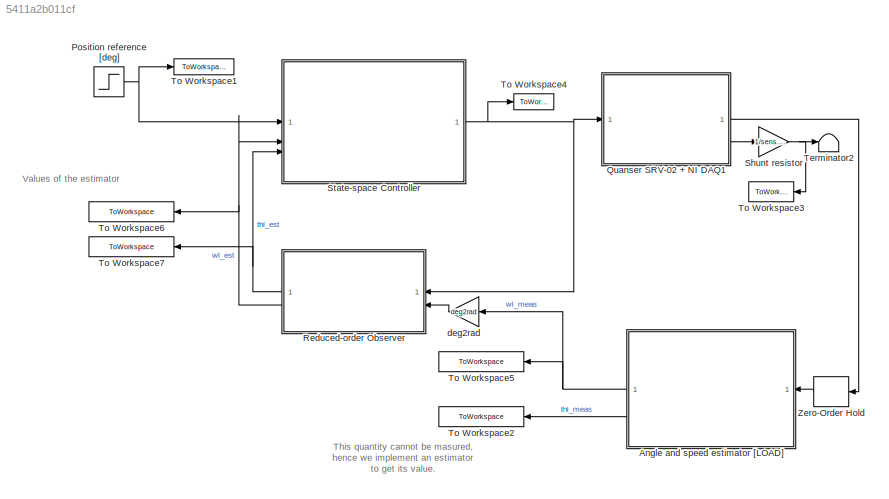
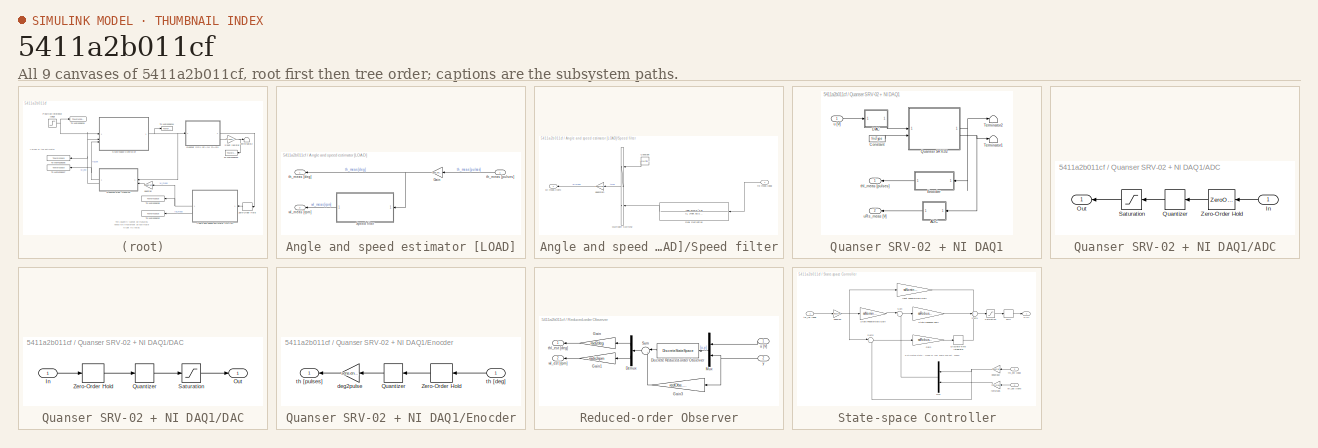
[diagram: thumbnail index - all 9 canvases of the model, root first then tree order]
MODEL slx_5411a2b011cf
KIND model
CONFIG AbsTol = auto
CONFIG EnableMultiTasking = off
CONFIG FixedStep = auto
CONFIG MaxStep = auto
CONFIG MinStep = auto
CONFIG RelTol = 1e-3
CONFIG SampleTimeConstraint = Unconstrained
CONFIG SolverName = VariableStepAuto
CONFIG StartTime = 0.0
CONFIG StopTime = 10.0
BLOCK [SubSystem] Angle and speed estimator [LOAD]
  NameLocation = top
BLOCK [Gain] Angle and speed estimator [LOAD]/Gain
  Gain = sens.enc.pulse2deg
  NameLocation = top
BLOCK [SubSystem] Angle and speed estimator [LOAD]/Speed filter
  NameLocation = top
BLOCK [Constant] Angle and speed estimator [LOAD]/Speed filter/Constant
  NameLocation = top
  Value = simul.filtselect
BLOCK [MultiPortSwitch] Angle and speed estimator [LOAD]/Speed filter/Multiport Switch2
  InputSameDT = off
  Inputs = 2
  NameLocation = top
  SaturateOnIntegerOverflow = off
BLOCK [TransferFcn] Angle and speed estimator [LOAD]/Speed filter/Real Derivative
  Denominator = [1, 2*der.dSS*der.wcSS, der.wcSS^2]
  NameLocation = top
  Numerator = [der.wcSS^2 0]
BLOCK [Gain] Angle and speed estimator [LOAD]/Speed filter/degs2rpm
  Gain = degs2rpm
BLOCK [Inport] Angle and speed estimator [LOAD]/Speed filter/thl-meas [deg]
BLOCK [Outport] Angle and speed estimator [LOAD]/Speed filter/wl-meas [rpm]
BLOCK [Outport] Angle and speed estimator [LOAD]/th_meas [deg]
BLOCK [Inport] Angle and speed estimator [LOAD]/th_meas [pulses]
  NameLocation = top
BLOCK [Outport] Angle and speed estimator [LOAD]/wl_meas [rpm]
  Port = 2
BLOCK [Step] Position reference [deg]
  After = simul.stepdeg
BLOCK [SubSystem] Quanser SRV-02 + NI DAQ1
BLOCK [SubSystem] Quanser SRV-02 + NI DAQ1/ADC
BLOCK [Inport] Quanser SRV-02 + NI DAQ1/ADC/In
BLOCK [Outport] Quanser SRV-02 + NI DAQ1/ADC/Out
BLOCK [Quantizer] Quanser SRV-02 + NI DAQ1/ADC/Quantizer
  QuantizationInterval = daq.adc.q
BLOCK [Saturate] Quanser SRV-02 + NI DAQ1/ADC/Saturation
  LowerLimit = -daq.adc.fs
  UpperLimit = daq.adc.fs
BLOCK [ZeroOrderHold] Quanser SRV-02 + NI DAQ1/ADC/Zero-Order Hold
  SampleTime = Ts
BLOCK [Constant] Quanser SRV-02 + NI DAQ1/Constant
  Value = fricType
BLOCK [SubSystem] Quanser SRV-02 + NI DAQ1/DAC
BLOCK [Inport] Quanser SRV-02 + NI DAQ1/DAC/In
BLOCK [Outport] Quanser SRV-02 + NI DAQ1/DAC/Out
BLOCK [Quantizer] Quanser SRV-02 + NI DAQ1/DAC/Quantizer
  QuantizationInterval = daq.dac.q
BLOCK [Saturate] Quanser SRV-02 + NI DAQ1/DAC/Saturation
  LowerLimit = -daq.dac.fs
  UpperLimit = daq.dac.fs
BLOCK [ZeroOrderHold] Quanser SRV-02 + NI DAQ1/DAC/Zero-Order Hold
  SampleTime = Ts
BLOCK [SubSystem] Quanser SRV-02 + NI DAQ1/Enocder
BLOCK [Quantizer] Quanser SRV-02 + NI DAQ1/Enocder/Quantizer
  QuantizationInterval = sens.enc.pulse2deg
BLOCK [ZeroOrderHold] Quanser SRV-02 + NI DAQ1/Enocder/Zero-Order Hold
  SampleTime = Ts
BLOCK [Gain] Quanser SRV-02 + NI DAQ1/Enocder/deg2pulse
  Gain = sens.enc.deg2pulse
BLOCK [Inport] Quanser SRV-02 + NI DAQ1/Enocder/th [deg]
BLOCK [Outport] Quanser SRV-02 + NI DAQ1/Enocder/th [pulses]
BLOCK [ModelReference] Quanser SRV-02 + NI DAQ1/Quanser SRV-02
  CopyOfModelProtected = on
  ModelNameDialog = SRV02IL_win64.slxp
  ModelReferenceVersion = 1.44
BLOCK [Terminator] Quanser SRV-02 + NI DAQ1/Terminator1
BLOCK [Terminator] Quanser SRV-02 + NI DAQ1/Terminator2
BLOCK [Outport] Quanser SRV-02 + NI DAQ1/thl_meas [pulses]
BLOCK [Inport] Quanser SRV-02 + NI DAQ1/u [V]
BLOCK [Outport] Quanser SRV-02 + NI DAQ1/uRs_meas [V]
  Port = 2
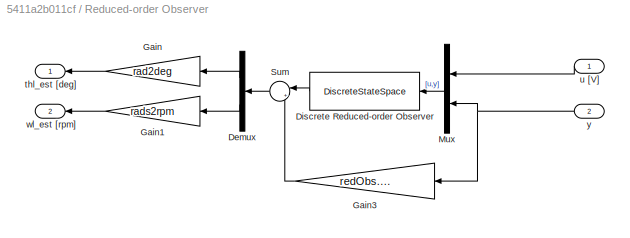
BLOCK [SubSystem] Reduced-order Observer
  NameLocation = top
BLOCK [Demux] Reduced-order Observer/Demux
  NameLocation = top
  Outputs = 2
BLOCK [DiscreteStateSpace] Reduced-order Observer/Discrete Reduced-order Observer
  A = redObs.Ph0
  B = redObs.Gamma0
  C = redObs.H0
  D = zeros(2)
  SampleTime = T(simul.Ts_selector)
BLOCK [Gain] Reduced-order Observer/Gain
  Gain = rad2deg
BLOCK [Gain] Reduced-order Observer/Gain1
  Gain = rads2rpm
BLOCK [Gain] Reduced-order Observer/Gain3
  Gain = redObs.J0(:,2)
  NameLocation = top
BLOCK [Mux] Reduced-order Observer/Mux
  DisplayOption = bar
  Inputs = 2
  NameLocation = top
BLOCK [Sum] Reduced-order Observer/Sum
  Inputs = |++
  NameLocation = top
BLOCK [Outport] Reduced-order Observer/thl_est [deg]
BLOCK [Inport] Reduced-order Observer/u [V]
BLOCK [Outport] Reduced-order Observer/wl_est [rpm]
  Port = 2
BLOCK [Inport] Reduced-order Observer/y
  Port = 2
BLOCK [Gain] Shunt resistor
  Gain = 1/sens.curr.Rs
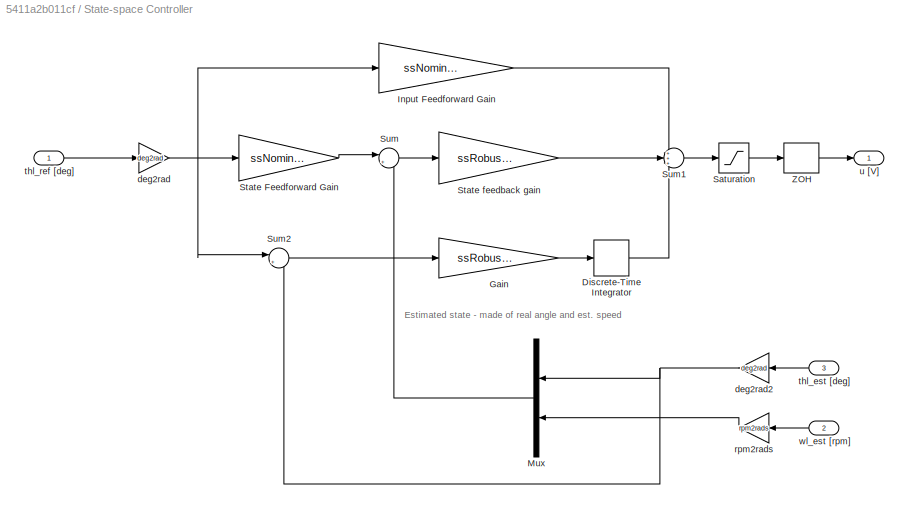
BLOCK [SubSystem] State-space Controller
BLOCK [DiscreteIntegrator] State-space Controller/Discrete-Time Integrator
  ICPrevOutput = DiscIntNeverNeededParam
  ICPrevScaledInput = DiscIntNeverNeededParam
  InitialConditionSetting = Auto
  IntegratorMethod = Integration: Backward Euler
  SampleTime = T(simul.Ts_selector)
BLOCK [Gain] State-space Controller/Gain
  Gain = ssRobust.Ki3
BLOCK [Gain] State-space Controller/Input Feedforward Gain
  Gain = ssNominal.Nu
BLOCK [Mux] State-space Controller/Mux
  DisplayOption = bar
  Inputs = 2
  NameLocation = top
BLOCK [Saturate] State-space Controller/Saturation
  LowerLimit = -10
  UpperLimit = 10
BLOCK [Gain] State-space Controller/State Feedforward Gain
  Gain = ssNominal.Nx
BLOCK [Gain] State-space Controller/State feedback gain
  Gain = ssRobust.K3
  Multiplication = Matrix(K*u)
BLOCK [Sum] State-space Controller/Sum
  Inputs = |+-
BLOCK [Sum] State-space Controller/Sum1
  Inputs = +++
BLOCK [Sum] State-space Controller/Sum2
  Inputs = |+-
BLOCK [ZeroOrderHold] State-space Controller/ZOH
  SampleTime = T(simul.Ts_selector)
BLOCK [Gain] State-space Controller/deg2rad
  Gain = deg2rad
BLOCK [Gain] State-space Controller/deg2rad2
  Gain = deg2rad
  NameLocation = top
BLOCK [Gain] State-space Controller/rpm2rads
  Gain = rpm2rads
  NameLocation = top
BLOCK [Inport] State-space Controller/thl_est [deg]
  NameLocation = top
  Port = 3
BLOCK [Inport] State-space Controller/thl_ref [deg]
BLOCK [Outport] State-space Controller/u [V]
BLOCK [Inport] State-space Controller/wl_est [rpm]
  NameLocation = top
  Port = 2
BLOCK [Terminator] Terminator2
BLOCK [ToWorkspace] To Workspace1
  FixptAsFi = on
  MaxDataPoints = inf
  SampleTime = Ts
  SaveFormat = Structure With Time
  VariableName = thref
BLOCK [ToWorkspace] To Workspace2
  FixptAsFi = on
  MaxDataPoints = inf
  NameLocation = top
  SampleTime = Ts
  SaveFormat = Structure With Time
  VariableName = wl_meas
BLOCK [ToWorkspace] To Workspace3
  FixptAsFi = on
  MaxDataPoints = inf
  NameLocation = top
  SampleTime = Ts
  SaveFormat = Structure With Time
  VariableName = ia
BLOCK [ToWorkspace] To Workspace4
  FixptAsFi = on
  MaxDataPoints = inf
  SampleTime = Ts
  SaveFormat = Structure With Time
  VariableName = u
BLOCK [ToWorkspace] To Workspace5
  FixptAsFi = on
  MaxDataPoints = inf
  NameLocation = top
  SampleTime = Ts
  SaveFormat = Structure With Time
  VariableName = thl_meas
BLOCK [ToWorkspace] To Workspace6
  FixptAsFi = on
  MaxDataPoints = inf
  NameLocation = top
  SampleTime = Ts
  SaveFormat = Structure With Time
  VariableName = wl_est
BLOCK [ToWorkspace] To Workspace7
  FixptAsFi = on
  MaxDataPoints = inf
  NameLocation = top
  SampleTime = Ts
  SaveFormat = Structure With Time
  VariableName = thl_est
BLOCK [ZeroOrderHold] Zero-Order Hold
  SampleTime = T(simul.Ts_selector)
BLOCK [Gain] deg2rad
  Gain = deg2rad
ANNOTATION (root): This quantity cannot be masured, hence we implement an estimator to get its value.
ANNOTATION (root): Values of the estimator
ANNOTATION State-space Controller: Estimated state - made of real angle and est. speed
NET Angle and speed estimator [LOAD]/Gain:1 -> Angle and speed estimator [LOAD]/Speed filter:1, Angle and speed estimator [LOAD]/th_meas [deg]:1
LINE Angle and speed estimator [LOAD]/Speed filter/Constant:1 -> Angle and speed estimator [LOAD]/Speed filter/Multiport Switch2:1
LINE Angle and speed estimator [LOAD]/Speed filter/Multiport Switch2:1 -> Angle and speed estimator [LOAD]/Speed filter/degs2rpm:1
LINE Angle and speed estimator [LOAD]/Speed filter/Real Derivative:1 -> Angle and speed estimator [LOAD]/Speed filter/Multiport Switch2:3
LINE Angle and speed estimator [LOAD]/Speed filter/degs2rpm:1 -> Angle and speed estimator [LOAD]/Speed filter/wl-meas [rpm]:1
LINE Angle and speed estimator [LOAD]/Speed filter/thl-meas [deg]:1 -> Angle and speed estimator [LOAD]/Speed filter/Real Derivative:1
LINE Angle and speed estimator [LOAD]/Speed filter:1 -> Angle and speed estimator [LOAD]/wl_meas [rpm]:1
LINE Angle and speed estimator [LOAD]/th_meas [pulses]:1 -> Angle and speed estimator [LOAD]/Gain:1
NET Angle and speed estimator [LOAD]:1 -> To Workspace5:1, deg2rad:1
LINE Angle and speed estimator [LOAD]:2 -> To Workspace2:1
NET Position reference [deg]:1 -> State-space Controller:1, To Workspace1:1
LINE Quanser SRV-02 + NI DAQ1/ADC/In:1 -> Quanser SRV-02 + NI DAQ1/ADC/Zero-Order Hold:1
LINE Quanser SRV-02 + NI DAQ1/ADC/Quantizer:1 -> Quanser SRV-02 + NI DAQ1/ADC/Saturation:1
LINE Quanser SRV-02 + NI DAQ1/ADC/Saturation:1 -> Quanser SRV-02 + NI DAQ1/ADC/Out:1
LINE Quanser SRV-02 + NI DAQ1/ADC/Zero-Order Hold:1 -> Quanser SRV-02 + NI DAQ1/ADC/Quantizer:1
LINE Quanser SRV-02 + NI DAQ1/ADC:1 -> Quanser SRV-02 + NI DAQ1/uRs_meas [V]:1
LINE Quanser SRV-02 + NI DAQ1/Constant:1 -> Quanser SRV-02 + NI DAQ1/Quanser SRV-02:2
LINE Quanser SRV-02 + NI DAQ1/DAC/In:1 -> Quanser SRV-02 + NI DAQ1/DAC/Zero-Order Hold:1
LINE Quanser SRV-02 + NI DAQ1/DAC/Quantizer:1 -> Quanser SRV-02 + NI DAQ1/DAC/Saturation:1
LINE Quanser SRV-02 + NI DAQ1/DAC/Saturation:1 -> Quanser SRV-02 + NI DAQ1/DAC/Out:1
LINE Quanser SRV-02 + NI DAQ1/DAC/Zero-Order Hold:1 -> Quanser SRV-02 + NI DAQ1/DAC/Quantizer:1
LINE Quanser SRV-02 + NI DAQ1/DAC:1 -> Quanser SRV-02 + NI DAQ1/Quanser SRV-02:1
LINE Quanser SRV-02 + NI DAQ1/Enocder/Quantizer:1 -> Quanser SRV-02 + NI DAQ1/Enocder/deg2pulse:1
LINE Quanser SRV-02 + NI DAQ1/Enocder/Zero-Order Hold:1 -> Quanser SRV-02 + NI DAQ1/Enocder/Quantizer:1
LINE Quanser SRV-02 + NI DAQ1/Enocder/deg2pulse:1 -> Quanser SRV-02 + NI DAQ1/Enocder/th [pulses]:1
LINE Quanser SRV-02 + NI DAQ1/Enocder/th [deg]:1 -> Quanser SRV-02 + NI DAQ1/Enocder/Zero-Order Hold:1
LINE Quanser SRV-02 + NI DAQ1/Enocder:1 -> Quanser SRV-02 + NI DAQ1/thl_meas [pulses]:1
NET Quanser SRV-02 + NI DAQ1/Quanser SRV-02:1 -> Quanser SRV-02 + NI DAQ1/Enocder:1, Quanser SRV-02 + NI DAQ1/Terminator2:1
NET Quanser SRV-02 + NI DAQ1/Quanser SRV-02:2 -> Quanser SRV-02 + NI DAQ1/ADC:1, Quanser SRV-02 + NI DAQ1/Terminator1:1
LINE Quanser SRV-02 + NI DAQ1/u [V]:1 -> Quanser SRV-02 + NI DAQ1/DAC:1
LINE Quanser SRV-02 + NI DAQ1:1 -> Zero-Order Hold:1
LINE Quanser SRV-02 + NI DAQ1:2 -> Shunt resistor:1
LINE Reduced-order Observer/Demux:1 -> Reduced-order Observer/Gain:1
LINE Reduced-order Observer/Demux:2 -> Reduced-order Observer/Gain1:1
LINE Reduced-order Observer/Discrete Reduced-order Observer:1 -> Reduced-order Observer/Sum:1
LINE Reduced-order Observer/Gain1:1 -> Reduced-order Observer/wl_est [rpm]:1
LINE Reduced-order Observer/Gain3:1 -> Reduced-order Observer/Sum:2
LINE Reduced-order Observer/Gain:1 -> Reduced-order Observer/thl_est [deg]:1
LINE Reduced-order Observer/Mux:1 -> Reduced-order Observer/Discrete Reduced-order Observer:1
LINE Reduced-order Observer/Sum:1 -> Reduced-order Observer/Demux:1
LINE Reduced-order Observer/u [V]:1 -> Reduced-order Observer/Mux:1
NET Reduced-order Observer/y:1 -> Reduced-order Observer/Gain3:1, Reduced-order Observer/Mux:2
NET Reduced-order Observer:1 -> State-space Controller:3, To Workspace7:1
NET Reduced-order Observer:2 -> State-space Controller:2, To Workspace6:1
NET Shunt resistor:1 -> Terminator2:1, To Workspace3:1
LINE State-space Controller/Discrete-Time Integrator:1 -> State-space Controller/Sum1:3
LINE State-space Controller/Gain:1 -> State-space Controller/Discrete-Time Integrator:1
LINE State-space Controller/Input Feedforward Gain:1 -> State-space Controller/Sum1:1
LINE State-space Controller/Mux:1 -> State-space Controller/Sum:2
LINE State-space Controller/Saturation:1 -> State-space Controller/ZOH:1
LINE State-space Controller/State Feedforward Gain:1 -> State-space Controller/Sum:1
LINE State-space Controller/State feedback gain:1 -> State-space Controller/Sum1:2
LINE State-space Controller/Sum1:1 -> State-space Controller/Saturation:1
LINE State-space Controller/Sum2:1 -> State-space Controller/Gain:1
LINE State-space Controller/Sum:1 -> State-space Controller/State feedback gain:1
LINE State-space Controller/ZOH:1 -> State-space Controller/u [V]:1
NET State-space Controller/deg2rad2:1 -> State-space Controller/Mux:1, State-space Controller/Sum2:2
NET State-space Controller/deg2rad:1 -> State-space Controller/Input Feedforward Gain:1, State-space Controller/State Feedforward Gain:1, State-space Controller/Sum2:1
LINE State-space Controller/rpm2rads:1 -> State-space Controller/Mux:2
LINE State-space Controller/thl_est [deg]:1 -> State-space Controller/deg2rad2:1
LINE State-space Controller/thl_ref [deg]:1 -> State-space Controller/deg2rad:1
LINE State-space Controller/wl_est [rpm]:1 -> State-space Controller/rpm2rads:1
NET State-space Controller:1 -> Quanser SRV-02 + NI DAQ1:1, Reduced-order Observer:1, To Workspace4:1
LINE Zero-Order Hold:1 -> Angle and speed estimator [LOAD]:1
LINE deg2rad:1 -> Reduced-order Observer:2
note: NET lines group one-source signal fan-out (src -> all destinations, sorted); 1:1 wires keep LINE
